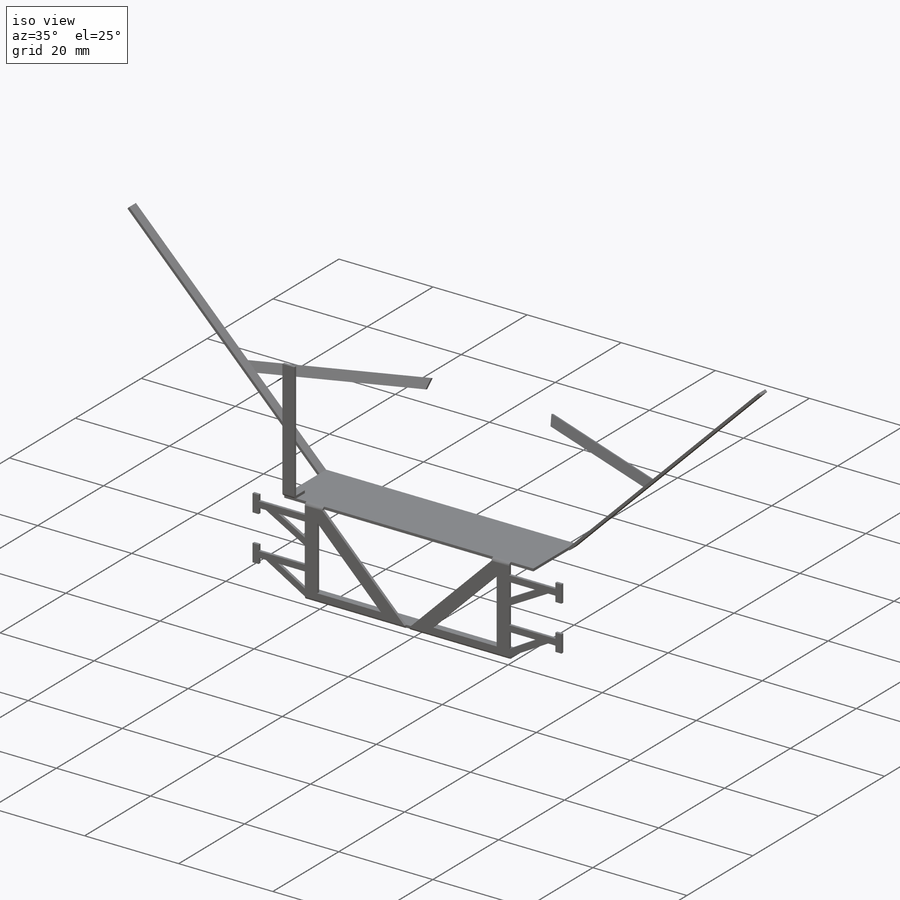
[diagram: iso view]
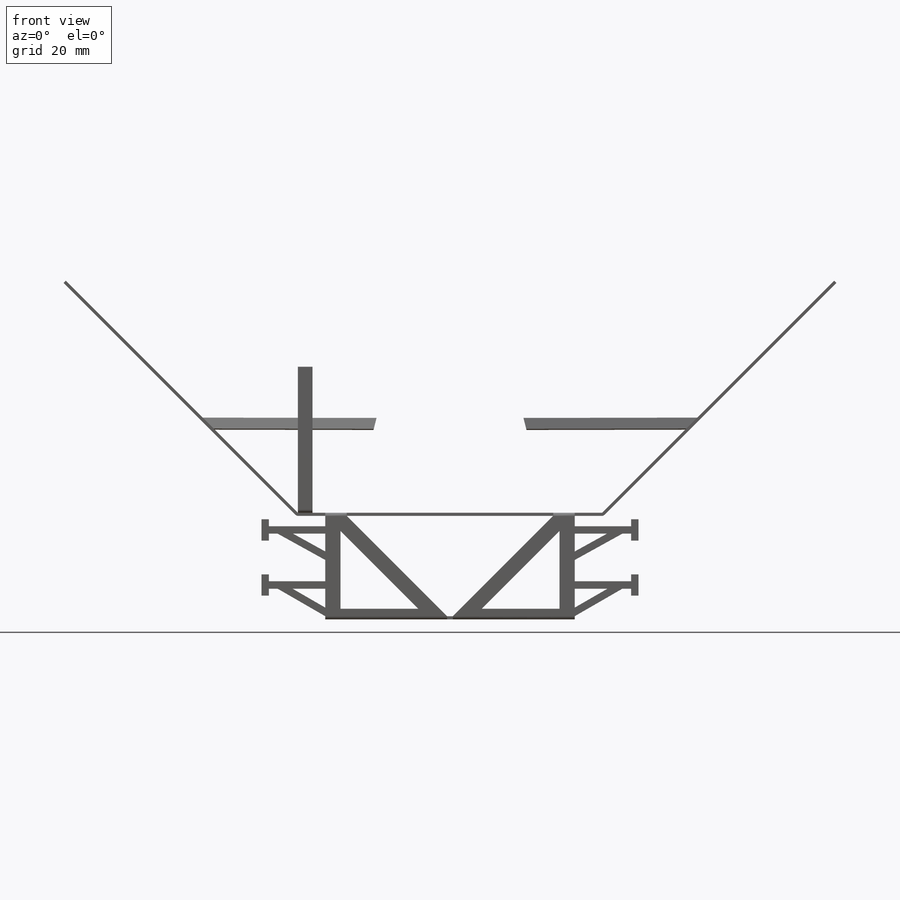
[diagram: front view]
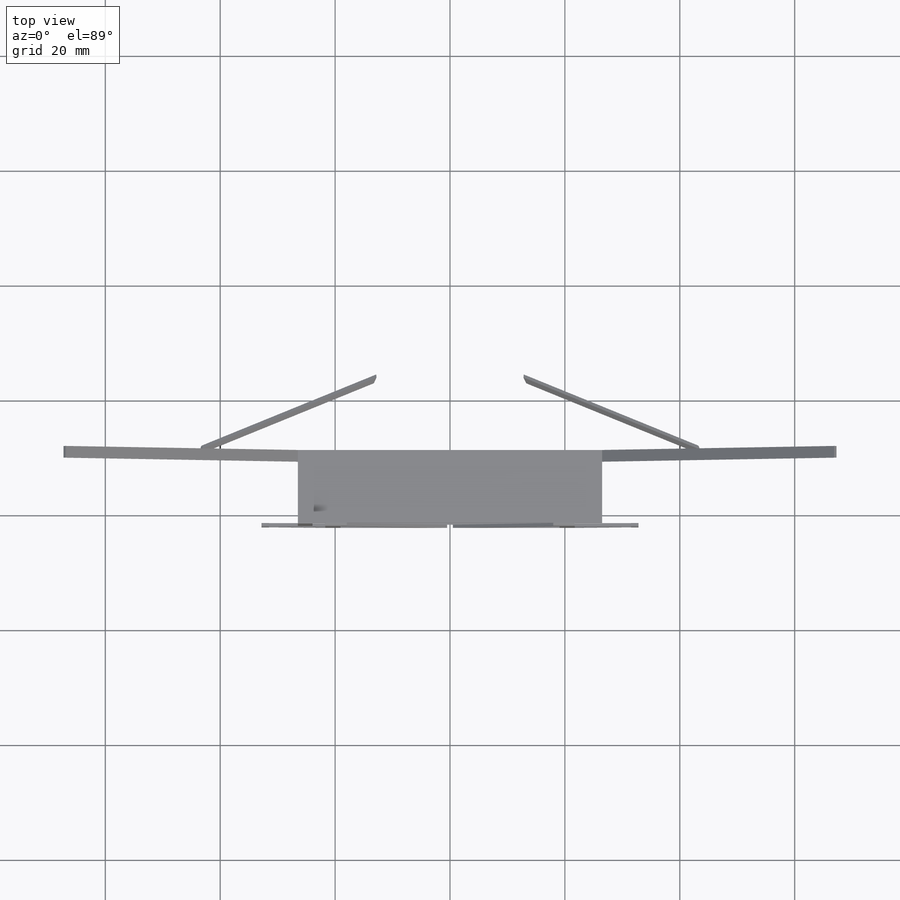
[diagram: top view]
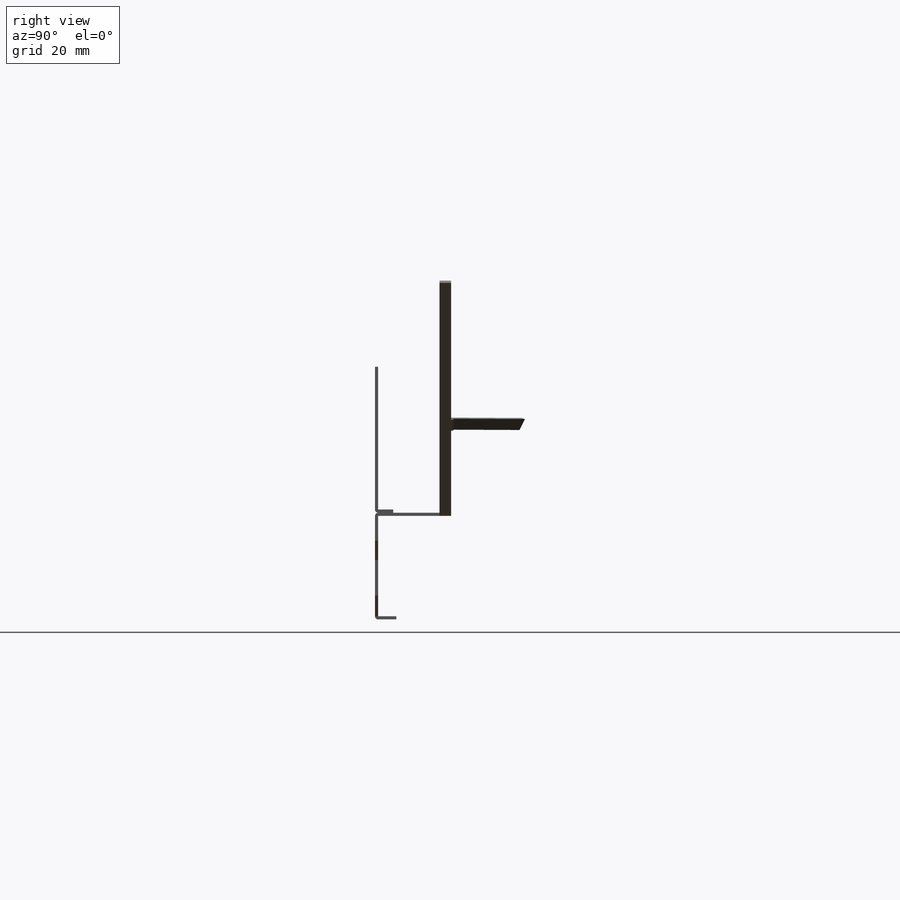
[diagram: right view]
SOLIDWORKS PART (.sldprt)
format: sldprt  version: not decoded by parser v0  size: 824,832 bytes
history: native  units: mm
features: sketch x51, sheet_metal_op x17, mirror x2, extrude x2, material x1, cut_extrude x1 + 47 further entries (+12 scaffold rows collapsed; 12 parser-record rows omitted)
feature tree (145):
  scaffold x12  (default folders/planes/origin — collapsed)
  material  "Brass"
  sketch  "Sketch1"  dims[c1.D1=3.175mm c1.D2=~43.42384mm c2.D1=~0.00254mm c2.D2=0.5 c2.D3=0.0mm c2.D6=500.0mm]
  sheet_metal_op  "Base-Flange1"
  sketch  "Sketch8"  dims[c1.D1=18.0213mm c1.D2=~15.323951mm c2.D2=45.0deg c2.D3=~2.645842mm c2.D4=~1.296458mm c2.D1=~0.00254mm c3.D4=90.0deg c3.D5=1.0 c3.D8=~0.277813mm c3.D9=~0.277813mm c3.D1=~0.00254mm c3.D2=500.0mm c3.D3=0.0mm c3.D6=10.0mm c3.D7=~17.465675mm]
  mirror  "Mirror1"
  sheet_metal_op  "Edge-Flange4"
  sketch  "Sketch14"  dims[c1.D1=~0.00254mm c1.D4=90.0deg c1.D5=2.0 c1.D8=~0.277813mm c1.D9=~0.277813mm c2.D1=~0.00254mm c2.D2=500.0mm c2.D3=0.0mm c2.D6=10.0mm c2.D7=12.7mm]
  sheet_metal_op  "Edge-Flange5"
  sketch  "Sketch29"  dims[D1=~0.00254mm D2=500.0mm D3=0.0mm D6=10.0mm D7=12.7mm]
  sketch  "Sketch18"  dims[D1=4.7625mm]
  extrude  "Boss-Extrude1"  [1 undecoded]
  sketch  "Sketch19"  dims[c1.D1=~1.296458mm c1.D2=~1.296458mm c1.D3=11.1125mm c1.D4=~5.682663mm c2.D4=~28.927143deg c2.D5=~3.704167mm c2.D6=~3.704167mm c2.D7=1.524mm c2.D2=~5.629128mm c3.D2=30.0deg]
  extrude  "Boss-Extrude2"  [1 undecoded]
  sheet_metal_op  "Edge-Flange6"
  sketch  "Sketch22"  dims[D1=2.032mm]
  sketch  "Sketch24"  dims[c1.D1=2.032mm c2.D1=~0.00254mm c2.D4=45.0deg c2.D5=4.0 c2.D8=~0.277813mm c2.D9=~0.277813mm c3.D1=~0.00254mm c3.D4=45.0deg c3.D5=6.0 c3.D8=~0.277813mm c3.D9=~0.277813mm c4.D1=~0.00254mm c4.D2=500.0mm c4.D3=0.0mm c4.D6=10.0mm c4.D7=57.15mm c4.D8=1.0mm]
  sheet_metal_op  "Edge-Flange7"
  sketch  "Sketch27"  dims[c1.D1=2.032mm c1.D2=~57.148948mm c2.D2=49.0deg c2.D1=~0.00254mm c2.D4=60.0deg c2.D5=7.0 c2.D8=~0.277813mm c2.D9=~0.277813mm c3.D1=~0.00254mm c3.D2=500.0mm c3.D3=0.0mm c3.D6=10.0mm c3.D7=~35.111044mm]
  sketch  "Sketch33"  dims[c1.D1=~3.101311mm c2.D1=~142.954148deg c3.D1=~52.94884mm c4.D1=75.73deg c4.D2=~26.04008mm c4.D3=~4.716266mm c4.D4=~2.855064mm c5.D1=10.16mm c5.D3=2.54mm c5.D4=~52.94884mm c6.D4=~75.725024deg c6.D5=~14.244178mm c6.D6=~4.727206mm]
  cut_extrude  "Cut-Extrude2"  Depth=25.4mm
  mirror  "Mirror2"
  sketch  "Sketch42"  dims[c1.D1=25.4mm c1.D2=3.175mm c1.Base-Flange2=0.0 c2.D1=~0.558165mm c2.D4=90.0deg c2.D5=1.0 c2.D8=~0.277813mm c2.D9=~0.277813mm c3.D1=~0.00254mm c3.D2=2.54mm]
  sketch  "3DSketch1"  dims[c1.D1=~20.929171mm c2.D1=~2.045341mm c3.D1=~19.36095mm c4.D1=~2.665248mm c5.D1=2.032mm]
  sketch  "Sketch65"  dims[D1=~3.78785mm]
  sketch  "Sketch70"  dims[D1=~1.401096mm]
  sketch  "Bend-Lines1"
  sketch  "Bounding-Box1"
  sheet_metal_op  "Sheet-Metal1"
  "Flat-Pattern1"
  sketch  "Bend-Lines2"
  sketch  "Bounding-Box2"
  parser-record x12  (decoder bookkeeping rows leaked as tree rows — omitted from the tree; the rows remain in map.json)
  sketch  "Sheet-Metal2"  dims[D1=~0.00254mm D2=500.0mm D3=0.0mm D7=~0.555625mm D6=500.0mm]
  sheet_metal_op  "Flat-Pattern1"
  sketch  "Bend-Lines2"
  sketch  "Bounding-Box2"
  sketch  "Sheet-Metal4"  dims[D1=~0.00254mm D2=500.0mm D3=0.0mm D7=~0.555625mm D6=500.0mm]
  sheet_metal_op  "Flat-Pattern1"
  sketch  "Bend-Lines2"
  sketch  "Bounding-Box2"
  "Flatten-<EdgeBend1>1"
  "Flatten-<EdgeBend2>1"
  "Flatten-<MirrorBend1>2"
  sketch  "Sheet-Metal5"  dims[D1=~0.00254mm D2=500.0mm D3=0.0mm D7=~0.555625mm D6=500.0mm]
  sheet_metal_op  "Flat-Pattern1"
  sketch  "Bend-Lines2"
  sketch  "Bounding-Box2"
  "Flatten-<EdgeBend1>1"
  "Flatten-<EdgeBend2>1"
  "Flatten-<MirrorBend1>3"
  "Flatten-<EdgeBend7>1"
  sketch  "Sheet-Metal6"  dims[D1=~0.00254mm D2=500.0mm D3=0.0mm D7=~0.555625mm D6=500.0mm]
  sheet_metal_op  "Flat-Pattern1"
  sketch  "Bend-Lines2"
  sketch  "Bounding-Box2"
  "Flatten-<EdgeBend1>1"
  "Flatten-<EdgeBend2>1"
  "Flatten-<MirrorBend1>4"
  "Flatten-<EdgeBend7>2"
  sketch  "Sheet-Metal7"  dims[D1=~0.00254mm D2=500.0mm D3=0.0mm D7=~0.555625mm D6=500.0mm]
  sheet_metal_op  "Flat-Pattern1"
  sketch  "Bend-Lines2"
  sketch  "Bounding-Box2"
  "Flatten-<EdgeBend1>1"
  "Flatten-<EdgeBend2>1"
  "Flatten-<MirrorBend1>5"
  "Flatten-<EdgeBend7>3"
  sketch  "Sheet-Metal8"  dims[D1=~0.00254mm D2=500.0mm D3=0.0mm D7=~0.555625mm D6=500.0mm]
  sheet_metal_op  "Flat-Pattern1"
  sketch  "Bend-Lines2"
  sketch  "Bounding-Box2"
  "Flatten-<EdgeBend1>1"
  "Flatten-<EdgeBend2>1"
  "Flatten-<EdgeBend4>1"
  "Flatten-<EdgeBend5>1"
  "Flatten-<MirrorBend1>6"
  "Flatten-<EdgeBend7>4"
  sketch  "Sheet-Metal9"  dims[D1=~0.00254mm D2=500.0mm D3=0.0mm D7=~0.555625mm D6=500.0mm]
  sheet_metal_op  "Flat-Pattern1"
  sketch  "Bend-Lines2"
  sketch  "Bounding-Box2"
  "Flatten-<EdgeBend1>1"
  "Flatten-<EdgeBend2>1"
  "Flatten-<EdgeBend4>1"
  "Flatten-<EdgeBend5>1"
  "Flatten-<EdgeBend6>1"
  "Flatten-<MirrorBend1>7"
  "Flatten-<EdgeBend7>5"
  sketch  "Sheet-Metal10"  dims[D1=~0.00254mm D2=500.0mm D3=0.0mm D7=~0.555625mm D6=500.0mm]
  sheet_metal_op  "Flat-Pattern1"
  sketch  "Bend-Lines2"
  sketch  "Bounding-Box2"
  "Flatten-<EdgeBend1>1"
  "Flatten-<MirrorBend1>1"
  sketch  "Sheet-Metal12"  dims[D1=~0.00254mm D2=500.0mm D3=0.0mm D7=~0.555625mm D6=500.0mm]
  sheet_metal_op  "Flat-Pattern1"
  sketch  "Bend-Lines2"
  sketch  "Bounding-Box2"
  "Flatten-<EdgeBend1>1"
  "Flatten-<EdgeBend2>1"
  "Flatten-<EdgeBend4>1"
  "Flatten-<EdgeBend5>1"
  "Flatten-<EdgeBend6>1"
  "Flatten-<MirrorBend1>7"
  "Flatten-<EdgeBend7>5"
  sketch  "Sheet-Metal13"  dims[D1=~0.00254mm D2=500.0mm D3=0.0mm D7=~0.555625mm D6=500.0mm]
  sheet_metal_op  "Flat-Pattern1"
  sketch  "Bend-Lines2"
  sketch  "Bounding-Box2"
  "Flatten-<EdgeBend1>1"
  "Flatten-<EdgeBend2>1"
  "Flatten-<EdgeBend4>1"
  "Flatten-<EdgeBend5>1"
  "Flatten-<EdgeBend6>1"
  "Flatten-<MirrorBend1>7"
  "Flatten-<EdgeBend7>5"
  "Flatten-<MirrorBend2>1"
  sketch  "Sheet-Metal17"  dims[D1=~0.00254mm D2=500.0mm D3=0.0mm D7=~0.555625mm D6=500.0mm]
  sheet_metal_op  "Flat-Pattern17"
  sketch  "Bend-Lines3"
  sketch  "Bounding-Box3"
  "Flatten-<BaseBend1>1"
decode coverage: 26 of 73 modeling features carry decoded parameters; 47 rows unclassified (native names shown)
note: ~ marks probable driven/reference dimensions
note: 2 parameter values undecoded
note: suppression state not decoded; provenance and decode notes live in map.json
